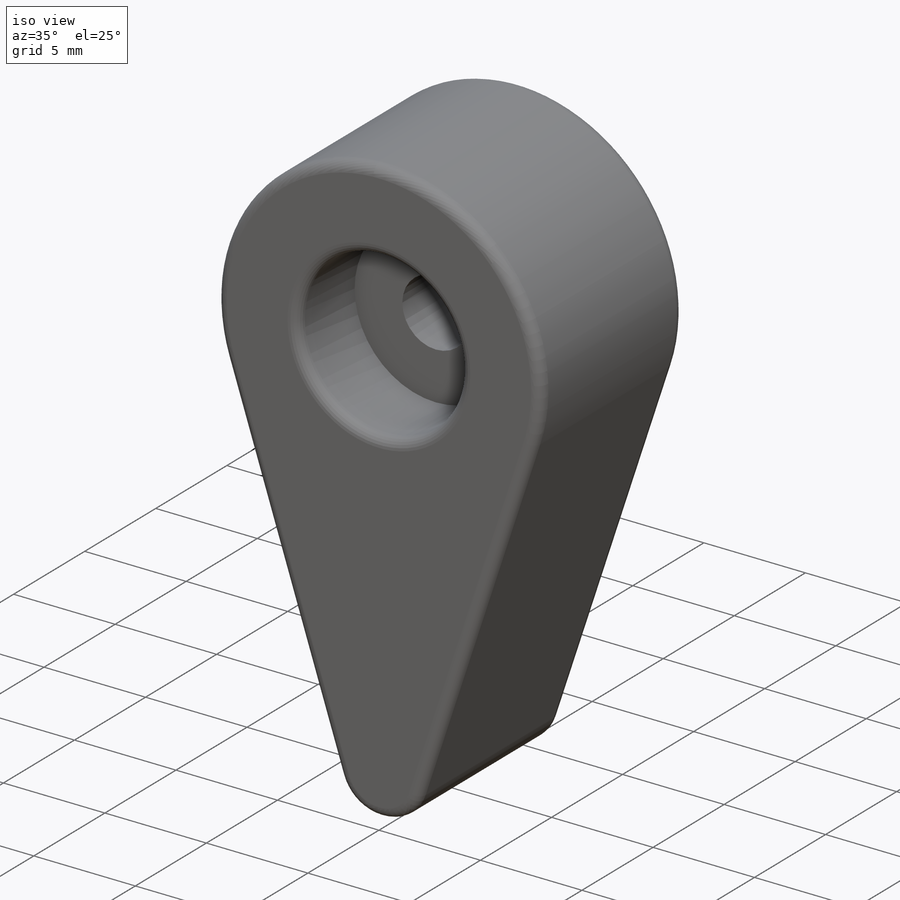
[diagram: iso view]
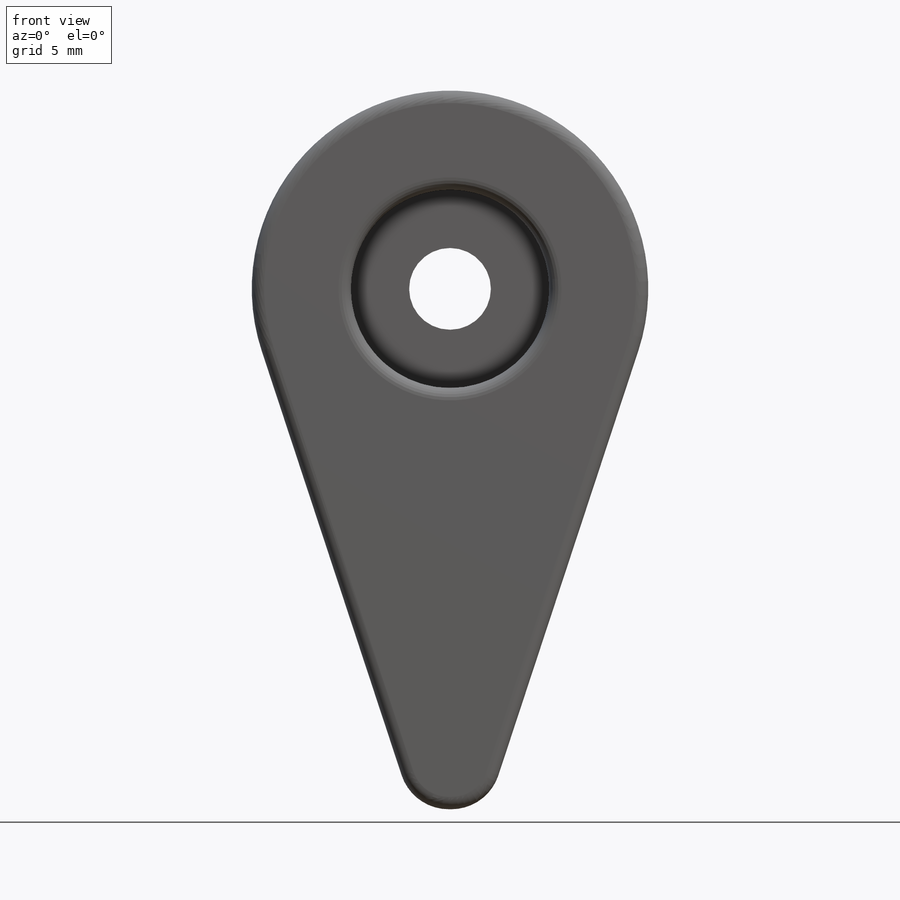
[diagram: front view]
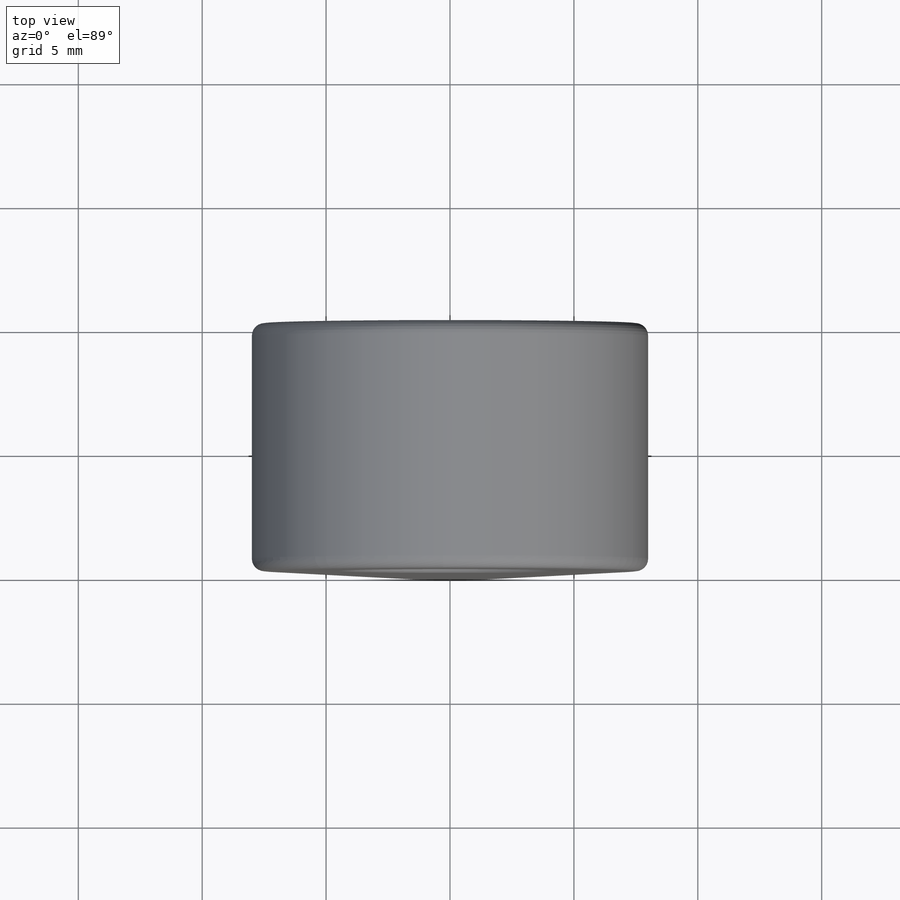
[diagram: top view]
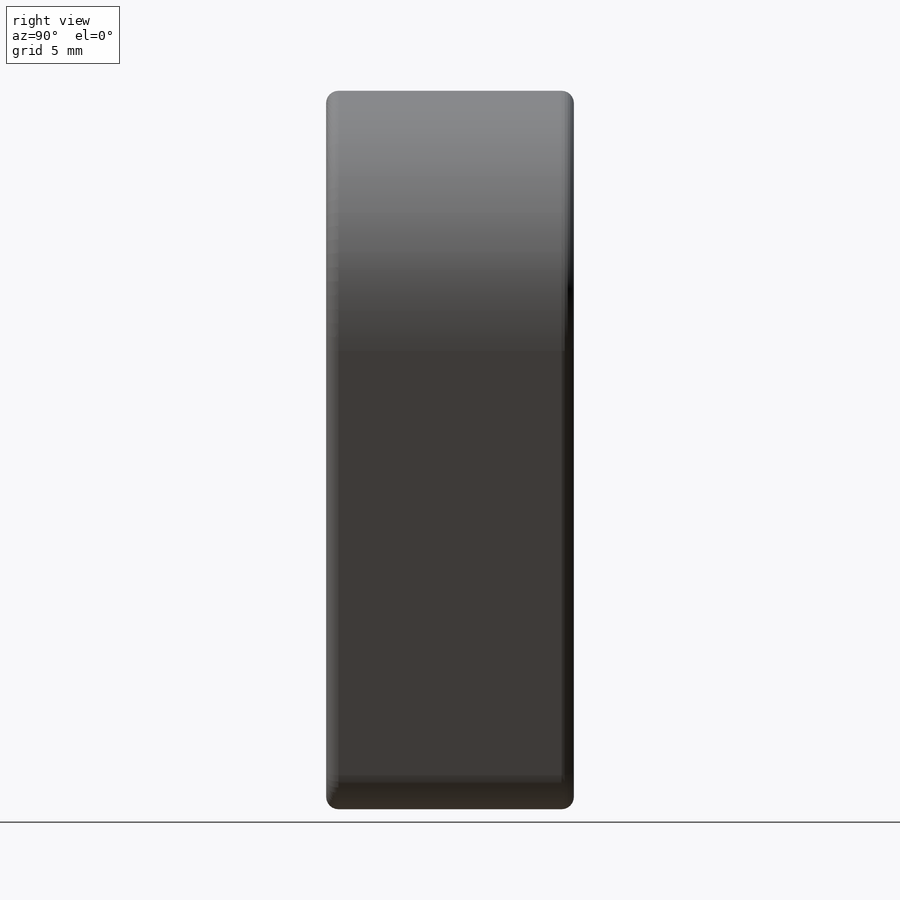
[diagram: right view]
SOLIDWORKS PART (.sldprt)
format: sldprt  version: not decoded by parser v0  size: 392,704 bytes
history: native  units: mm
features: sketch x6, plane x3, fillet x3, hole x2, material x1, extrude x1, chamfer x1, cut_extrude x1, thread x1 (+8 scaffold rows collapsed)
feature tree (27):
  scaffold x8  (default folders/planes/origin — collapsed)
  material  "Сплав 2024"
  plane  "Спереди"
  plane  "Сверху"
  plane  "Справа"
  sketch  "Эскиз1"  dims[c1.D1=16.0mm c1.D2=~19.681507mm c1.D3=~6.731103mm c2.D2=7.0mm c2.D3=21.0mm c3.D2=3.0mm]
  extrude  "Бобышка-Вытянуть1"  Depth=10mm
  hole  "Цековка для винта с внутренним шестигранником M41"  [1 undecoded]
  sketch  "Эскиз3"
  sketch  "Эскиз2"  dims[hole-wizard template sketch: 44 standard entries collapsed; hole parameters kept: c12.Глубина цековки=4.0mm]
  fillet  "Скругление1"  Radius=2mm
  fillet  "Скругление2"  Radius=5mm
  chamfer  "Фаска1"  Distance=0.5mm Angle=45deg
  sketch  "Эскиз4"  dims[D1=8.0mm]
  cut_extrude  "Вырез-Вытянуть1"  Depth=4mm
  hole  "Отверстие обработанное метчиком M4x0.71"  [1 undecoded]
  sketch  "Эскиз6"
  sketch  "Эскиз5"  dims[hole-wizard template sketch: 60 standard entries collapsed; hole parameters kept: c18.Глубина проходного сверла=6.0mm]
  thread  "Отверстие резьбы1"  Diameter=4mm  [1 undecoded]
  fillet  "Скругление3"  Radius=0.5mm
decode coverage: 11 of 15 modeling features carry decoded parameters
note: ~ marks probable driven/reference dimensions
note: 3 parameter values undecoded
note: suppression state not decoded; provenance and decode notes live in map.json
